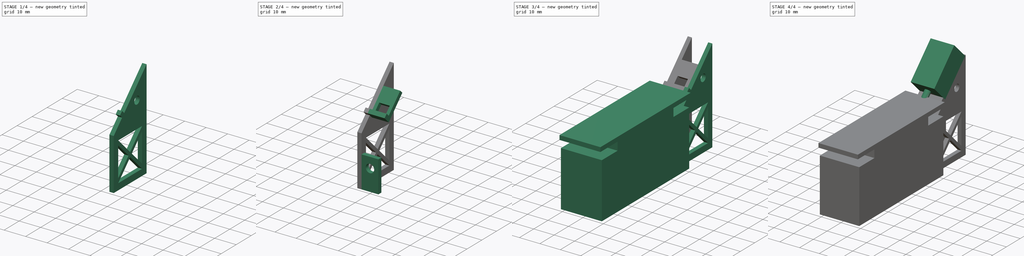
[diagram: build sequence overview — one tinted view per stage of 4, left to right]
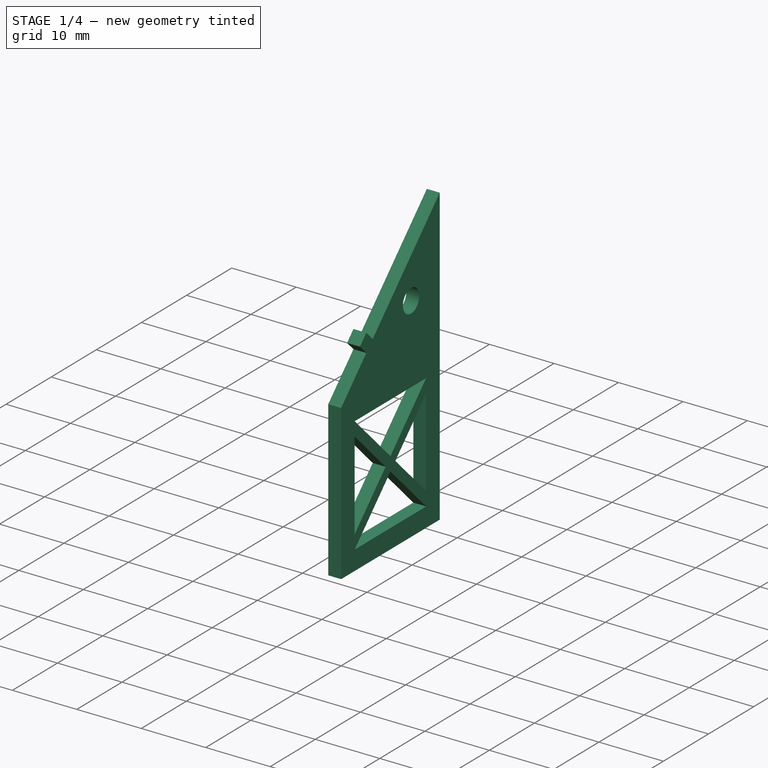
[diagram: stage 1 of 4 — iso view after this stage's code; geometry added in this stage tinted green]
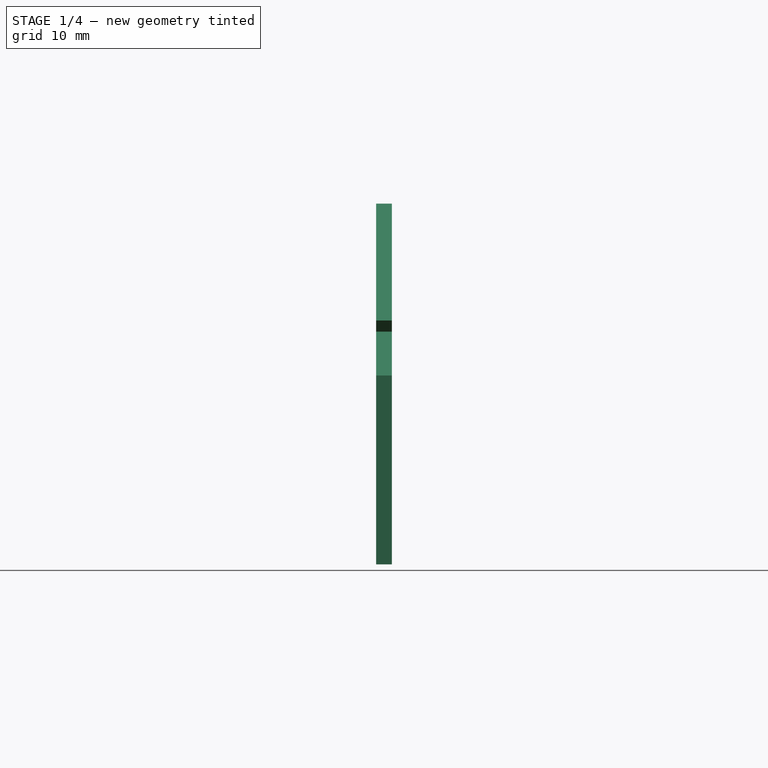
[diagram: stage 1 of 4 — front view after this stage's code; geometry added in this stage tinted green]
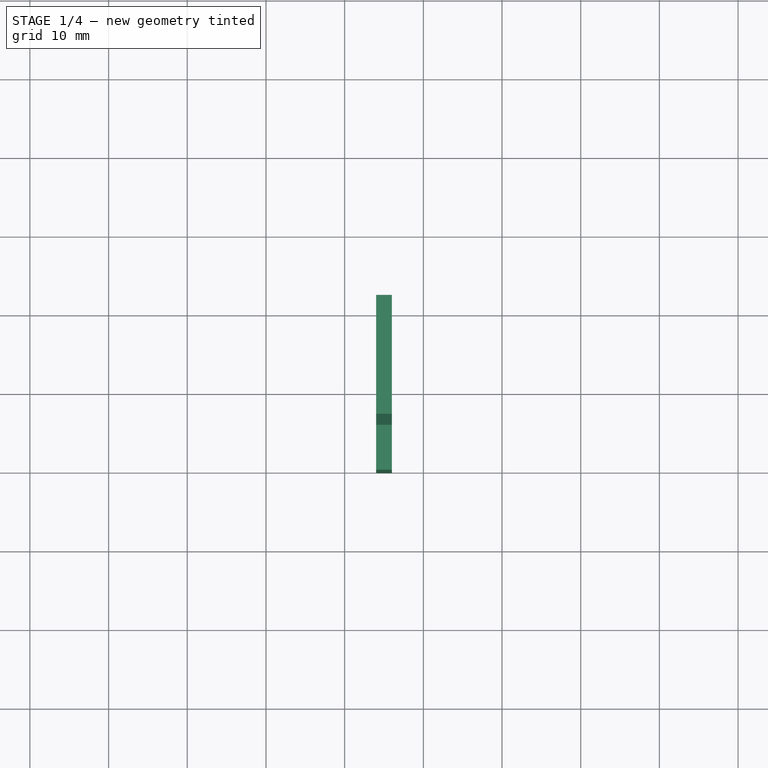
[diagram: stage 1 of 4 — top view after this stage's code; geometry added in this stage tinted green]
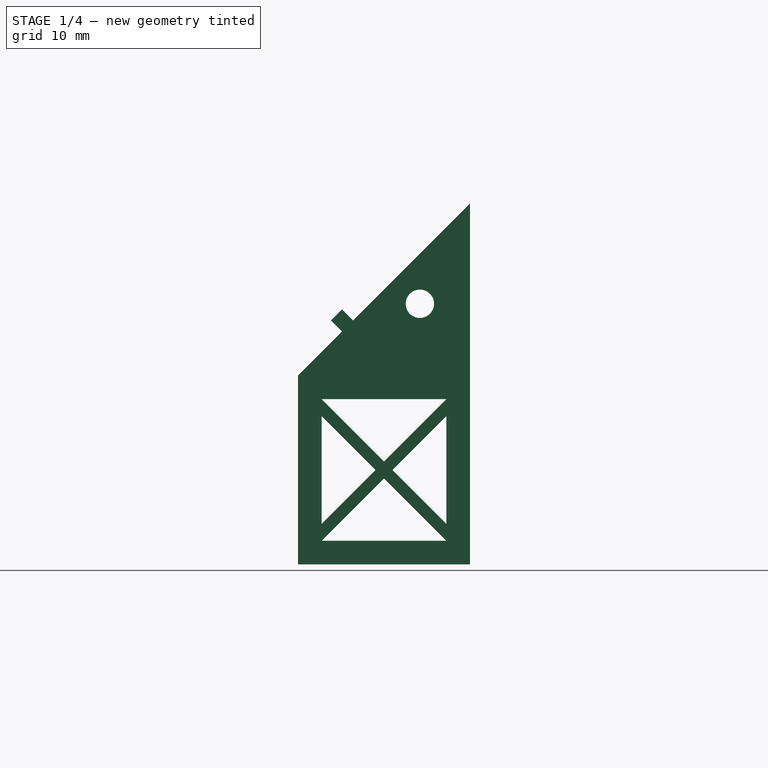
[diagram: stage 1 of 4 — right view after this stage's code; geometry added in this stage tinted green]
FCSTD DOCUMENT  (FreeCAD 0.16R)
Label: solenoid_holder
License: All rights reserved
LicenseURL: http://en.wikipedia.org/wiki/All_rights_reserved
objects: Sketcher::SketchObject×7, PartDesign::Pad×4, PartDesign::Pocket×3, App::DocumentObjectGroup×3, Part::Box×1, Part::FeaturePython×1, Part::MultiFuse×1
note: 24 computed .brp shape members not serialized (recipe doc carries the construction recipe); baked Part::Feature solids carry a one-line shape summary decoded from their .brp

FEATURE [Sketcher::SketchObject] Sketch002
  Placement = pos=(4,0,0) rot=(0.57735,0.57735,0.57735;2.0944rad)
  sketch-geometry (36):
    g0: LineSegment StartX=21.8492 StartY=0 StartZ=0 EndX=0 EndY=0 EndZ=0
    g1: LineSegment StartX=0 StartY=0 StartZ=0 EndX=0 EndY=24 EndZ=0
    g2: LineSegment StartX=0 StartY=24 StartZ=0 EndX=5.58579 EndY=29.5858 EndZ=0
    g3: LineSegment StartX=5.58579 StartY=29.5858 StartZ=0 EndX=4.17157 EndY=31 EndZ=0
    g4: LineSegment StartX=4.17157 StartY=31 StartZ=0 EndX=5.58579 EndY=32.4142 EndZ=0
    g5: LineSegment StartX=5.58579 StartY=32.4142 StartZ=0 EndX=7 EndY=31 EndZ=0
    g6: LineSegment StartX=7 StartY=31 StartZ=0 EndX=21.8492 EndY=45.8492 EndZ=0
    g7: LineSegment StartX=21.8492 StartY=45.8492 StartZ=0 EndX=21.8492 EndY=0 EndZ=0
    g8: LineSegment [constr] StartX=3 StartY=21 StartZ=0 EndX=18.8492 EndY=21 EndZ=0
    g9: LineSegment [constr] StartX=18.8492 StartY=21 StartZ=0 EndX=18.8492 EndY=3 EndZ=0
    g10: LineSegment [constr] StartX=18.8492 StartY=3 StartZ=0 EndX=3 EndY=3 EndZ=0
    g11: LineSegment [constr] StartX=3 StartY=3 StartZ=0 EndX=3 EndY=21 EndZ=0
    g12: LineSegment [constr] StartX=3 StartY=21 StartZ=0 EndX=0 EndY=21 EndZ=0
    g13: LineSegment [constr] StartX=18.8492 StartY=21 StartZ=0 EndX=21.8492 EndY=21 EndZ=0
    g14: LineSegment [constr] StartX=3 StartY=3 StartZ=0 EndX=3 EndY=0 EndZ=0
    g15: LineSegment StartX=3 StartY=18.8492 StartZ=0 EndX=9.84924 EndY=12 EndZ=0
    g16: LineSegment StartX=9.84924 StartY=12 StartZ=0 EndX=3 EndY=5.15076 EndZ=0
    g17: LineSegment StartX=3 StartY=5.15076 StartZ=0 EndX=3 EndY=18.8492 EndZ=0
    g18: LineSegment [constr] StartX=3 StartY=21 StartZ=0 EndX=18.8492 EndY=3 EndZ=0
    g19: LineSegment [constr] StartX=18.8492 StartY=21 StartZ=0 EndX=3 EndY=3 EndZ=0
    g20: Circle [constr] CenterX=10.9246 CenterY=12 CenterZ=0 NormalX=0 NormalY=0 NormalZ=1 Radius=1.07538
    g21: LineSegment [constr] StartX=9.84924 StartY=12 StartZ=0 EndX=3 EndY=12 EndZ=0
    g22: LineSegment [constr] StartX=18.8492 StartY=12 StartZ=0 EndX=12 EndY=12 EndZ=0
    g23: LineSegment StartX=18.8492 StartY=18.8492 StartZ=0 EndX=12 EndY=12 EndZ=0
    g24: LineSegment StartX=12 StartY=12 StartZ=0 EndX=18.8492 EndY=5.15076 EndZ=0
    g25: LineSegment StartX=18.8492 StartY=5.15076 StartZ=0 EndX=18.8492 EndY=18.8492 EndZ=0
    g26: LineSegment StartX=3 StartY=21 StartZ=0 EndX=18.8492 EndY=21 EndZ=0
    g27: LineSegment StartX=18.8492 StartY=21 StartZ=0 EndX=10.9246 EndY=13.0754 EndZ=0
    g28: LineSegment StartX=10.9246 StartY=13.0754 StartZ=0 EndX=3 EndY=21 EndZ=0
    g29: LineSegment [constr] StartX=10.9246 StartY=13.0754 StartZ=0 EndX=10.9246 EndY=21 EndZ=0
    g30: LineSegment [constr] StartX=10.9246 StartY=10.9246 StartZ=0 EndX=10.9246 EndY=3 EndZ=0
    g31: LineSegment StartX=10.9246 StartY=10.9246 StartZ=0 EndX=3 EndY=3 EndZ=0
    g32: LineSegment StartX=3 StartY=3 StartZ=0 EndX=18.8492 EndY=3 EndZ=0
    g33: LineSegment StartX=18.8492 StartY=3 StartZ=0 EndX=10.9246 EndY=10.9246 EndZ=0
    g34: Circle CenterX=15.4853 CenterY=33.1213 CenterZ=0 NormalX=0 NormalY=0 NormalZ=1 Radius=1.8
    g35: LineSegment [constr] StartX=15.4853 StartY=33.1213 StartZ=0 EndX=12.3033 EndY=36.3033 EndZ=0
  constraints (101):
    c: PointOnObject(g0,g-1)
    c: Coincident(g0,g-1)
    c: Coincident(g0,g1)
    c: PointOnObject(g1,g-2)
    c: Coincident(g1,g2)
    c: Coincident(g2,g3)
    c: Coincident(g3,g4)
    c: Coincident(g4,g5)
    c: Coincident(g5,g6)
    c: Coincident(g6,g7)
    c: Vertical(g7)
    c: Coincident(g7,g0)
    c: Angle(g1,g2) = 2.35619
    c: Perpendicular(g2,g3)
    c: Perpendicular(g3,g4)
    c: Perpendicular(g4,g5)
    c: Perpendicular(g5,g6)
    c: Equal(g5,g3)
    c: Distance(g5,g0) = 31
    c: Distance(g4) = 2
    c: Distance(g3) = 2
    c: Distance(g1) = 24
    c: Distance(g6) = 21
    c: Coincident(g8,g9)
    c: Coincident(g9,g10)
    c: Coincident(g10,g11)
    c: Coincident(g11,g8)
    c: Horizontal(g8)
    c: Vertical(g9)
    c: Vertical(g11)
    c: Coincident(g12,g8)
    c: PointOnObject(g12,g1)
    c: Horizontal(g12)
    c: Coincident(g13,g8)
    c: PointOnObject(g13,g7)
    c: Horizontal(g13)
    c: Equal(g13,g12)
    c: Coincident(g14,g10)
    c: PointOnObject(g14,g0)
    c: Vertical(g14)
    c: Equal(g14,g12)
    c: DistanceX(g13,g13) = 3
    c: Distance(g1,g12) = 3
    c: PointOnObject(g15,g11)
    c: Coincident(g15,g16)
    c: PointOnObject(g16,g11)
    c: Coincident(g16,g17)
    c: Coincident(g17,g15)
    c: Coincident(g18,g8)
    c: Coincident(g18,g9)
    c: Coincident(g19,g8)
    c: Coincident(g19,g10)
    c: PointOnObject(g20,g18)
    c: PointOnObject(g20,g19)
    c: PointOnObject(g15,g20)
    c: Coincident(g21,g15)
    c: PointOnObject(g21,g11)
    c: Symmetric(g15,g16,g21)
    c: Symmetric(g8,g10,g21)
    c: Angle(g15,g16) = 1.5708
    c: PointOnObject(g22,g9)
    c: PointOnObject(g22,g20)
    c: PointOnObject(g23,g9)
    c: Coincident(g23,g22)
    c: Coincident(g23,g24)
    c: PointOnObject(g24,g9)
    c: Coincident(g24,g25)
    c: Coincident(g25,g23)
    c: Angle(g24,g23) = 1.5708
    c: Symmetric(g8,g9,g22)
    c: Symmetric(g23,g24,g22)
    c: PointOnObject(g26,g8)
    c: PointOnObject(g26,g8)
    c: Coincident(g26,g27)
    c: PointOnObject(g27,g20)
    c: Coincident(g27,g28)
    c: Coincident(g28,g26)
    c: Angle(g27,g28) = 1.5708
    c: Coincident(g29,g27)
    c: PointOnObject(g29,g8)
    c: Symmetric(g26,g26,g29)
    c: Symmetric(g8,g8,g29)
    c: PointOnObject(g30,g20)
    c: PointOnObject(g30,g10)
    c: Vertical(g30)
    c: Coincident(g30,g31)
    c: PointOnObject(g31,g10)
    c: Coincident(g31,g32)
    c: PointOnObject(g32,g10)
    c: Coincident(g32,g33)
    c: Coincident(g33,g31)
    c: Angle(g31,g33) = 1.5708
    c: Symmetric(g31,g32,g30)
    c: Symmetric(g9,g10,g30)
    c: Coincident(g31,g10)
    c: Coincident(g35,g34)
    c: PointOnObject(g35,g6)
    c: Perpendicular(g6,g35)
    c: Radius(g34) = 1.8
    c: Distance(g35,g5) = 7.5
    c: Distance(g35) = 4.5
FEATURE [PartDesign::Pad] Pad002
  Length = 2
  Length2 = 100
  Placement = pos=(4,0,0) rot=(0.57735,0.57735,0.57735;2.0944rad)
  Sketch = -> Sketch002
  Type = 0
FEATURE [Sketcher::SketchObject] Sketch003
  ExternalGeometry = -> [Pad002]
  Placement = pos=(4,0,3) rot=(0,0,-1;1.5708rad)
  Support = -> Pad002 [Face10]
  sketch-geometry (2):
    g0: Circle CenterX=-15 CenterY=7 CenterZ=0 NormalX=0 NormalY=0 NormalZ=1 Radius=1.8
    g1: LineSegment [constr] StartX=-15 StartY=7 StartZ=0 EndX=-15 EndY=2 EndZ=0
  constraints (6):
    c: Coincident(g1,g0)
    c: PointOnObject(g1,g-3)
    c: Perpendicular(g-3,g1)
    c: Distance(g1) = 5
    c: Radius(g0) = 1.8
    c: Distance(g1,g-3) = 8
FEATURE [PartDesign::Pocket] Pocket
  Length = 5
  Placement = pos=(4,0,0) rot=(0.57735,0.57735,0.57735;2.0944rad)
  Sketch = -> Sketch003
  Type = 1
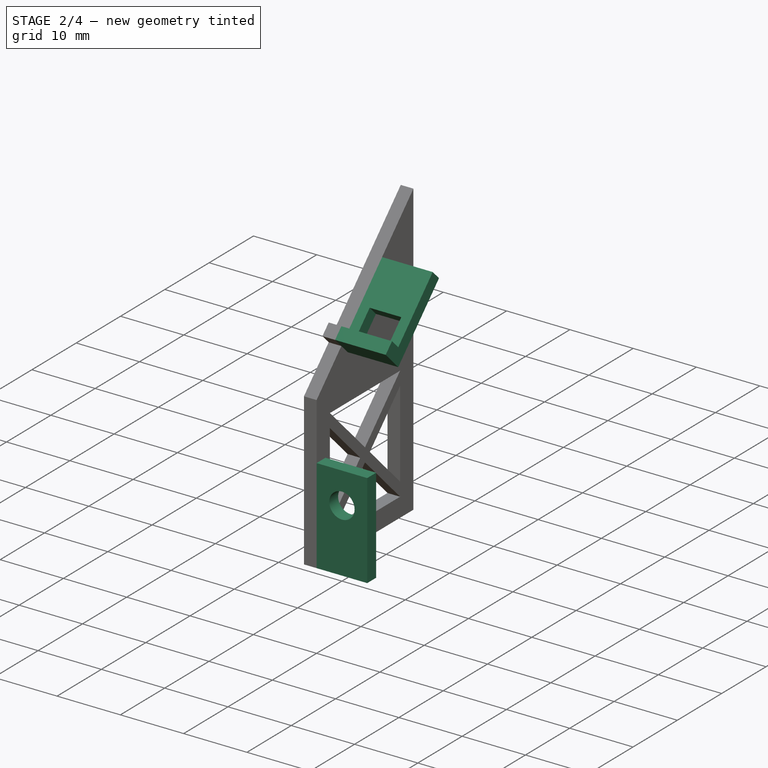
[diagram: stage 2 of 4 — iso view after this stage's code; geometry added in this stage tinted green]
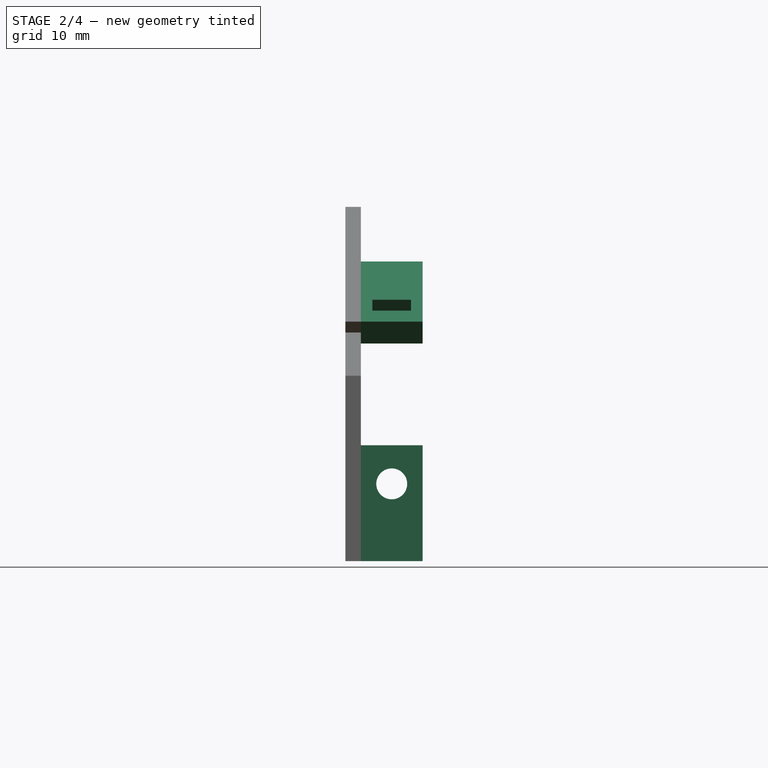
[diagram: stage 2 of 4 — front view after this stage's code; geometry added in this stage tinted green]
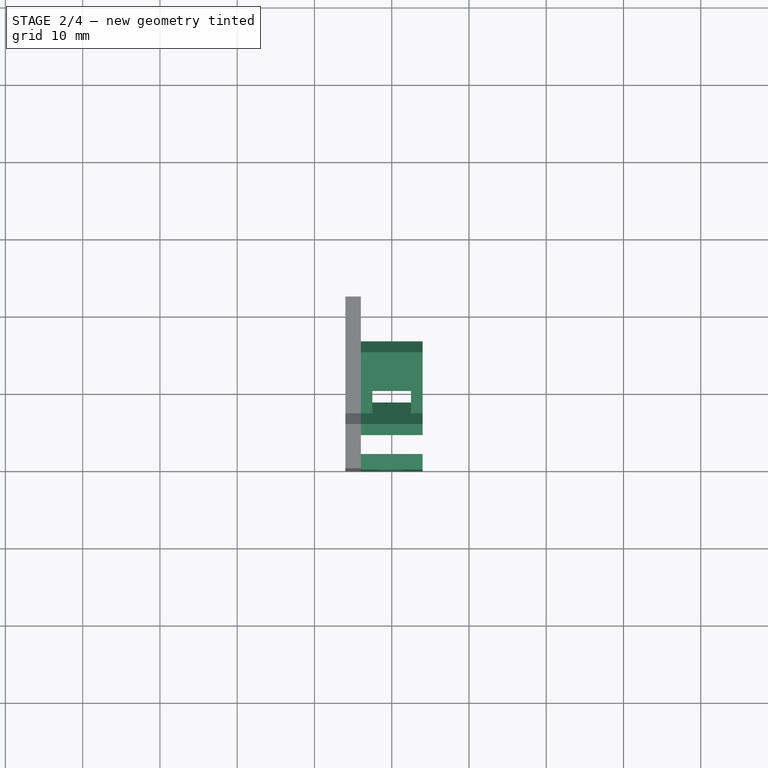
[diagram: stage 2 of 4 — top view after this stage's code; geometry added in this stage tinted green]
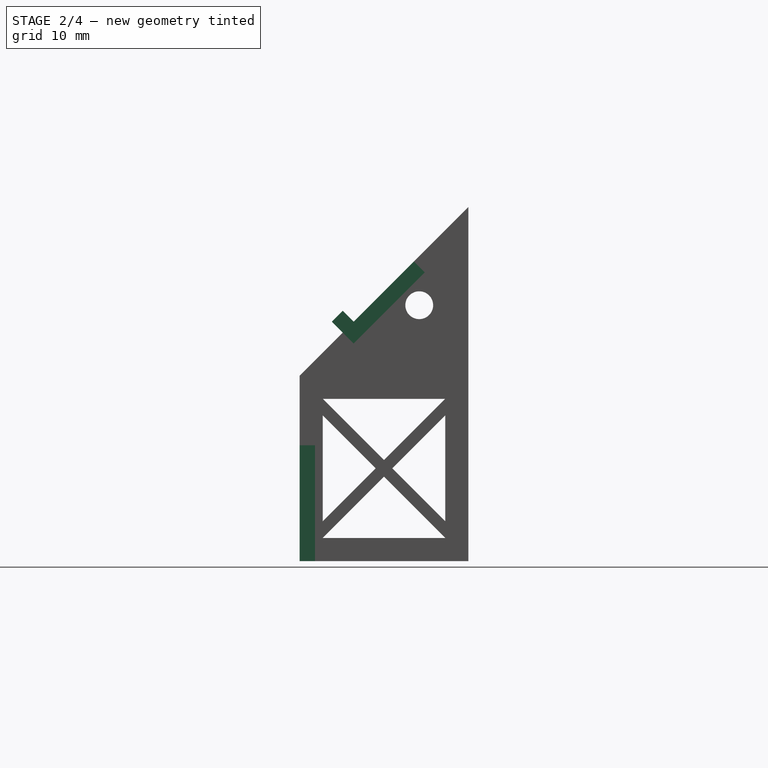
[diagram: stage 2 of 4 — right view after this stage's code; geometry added in this stage tinted green]
FEATURE [Sketcher::SketchObject] Sketch004
  ExternalGeometry = -> [Pocket]
  Placement = pos=(6,0,0) rot=(0.57735,0.57735,0.57735;2.0944rad)
  Support = -> Pocket [Face23]
  sketch-geometry (10):
    g0: LineSegment StartX=7 StartY=31 StartZ=0 EndX=5.58579 EndY=32.4142 EndZ=0
    g1: LineSegment StartX=5.58579 StartY=32.4142 StartZ=0 EndX=4.17157 EndY=31 EndZ=0
    g2: LineSegment StartX=4.17157 StartY=31 StartZ=0 EndX=7 EndY=28.1716 EndZ=0
    g3: LineSegment StartX=7 StartY=28.1716 StartZ=0 EndX=16.1924 EndY=37.364 EndZ=0
    g4: LineSegment StartX=16.1924 StartY=37.364 StartZ=0 EndX=14.7782 EndY=38.7782 EndZ=0
    g5: LineSegment StartX=0 StartY=0 StartZ=0 EndX=2 EndY=0 EndZ=0
    g6: LineSegment StartX=2 StartY=0 StartZ=0 EndX=2 EndY=15 EndZ=0
    g7: LineSegment StartX=2 StartY=15 StartZ=0 EndX=0 EndY=15 EndZ=0
    g8: LineSegment StartX=0 StartY=15 StartZ=0 EndX=0 EndY=0 EndZ=0
    g9: LineSegment StartX=7 StartY=31 StartZ=0 EndX=14.7782 EndY=38.7782 EndZ=0
  constraints (26):
    c: Coincident(g-4,g0)
    c: Coincident(g0,g-5)
    c: Coincident(g0,g1)
    c: Coincident(g1,g-6)
    c: Coincident(g1,g2)
    c: Coincident(g2,g3)
    c: Coincident(g3,g4)
    c: PointOnObject(g4,g-3)
    c: Perpendicular(g3,g2)
    c: PointOnObject(g-6,g2)
    c: Perpendicular(g3,g4)
    c: Distance(g4) = 2
    c: Distance(g3) = 13
    c: Coincident(g5,g6)
    c: Coincident(g6,g7)
    c: Coincident(g7,g8)
    c: Coincident(g8,g5)
    c: Horizontal(g5)
    c: Horizontal(g7)
    c: Vertical(g6)
    c: Vertical(g8)
    c: Coincident(g5,g-1)
    c: DistanceX(g7,g7) = 2
    c: DistanceY(g6,g6) = 15
    c: Coincident(g9,g0)
    c: Coincident(g9,g4)
FEATURE [PartDesign::Pad] Pad003
  Length = 8
  Length2 = 100
  Placement = pos=(4,0,0) rot=(0.57735,0.57735,0.57735;2.0944rad)
  Sketch = -> Sketch004
  Type = 0
FEATURE [Sketcher::SketchObject] Sketch005
  ExternalGeometry = -> [Pad003]
  Placement = pos=(4,-12,12) rot=(0.357407,0.357407,-0.862856;1.71777rad)
  Support = -> Pad003 [Face7]
  sketch-geometry (6):
    g0: LineSegment StartX=-26.8701 StartY=8.5 StartZ=0 EndX=-30.8701 EndY=8.5 EndZ=0
    g1: LineSegment StartX=-30.8701 StartY=8.5 StartZ=0 EndX=-30.8701 EndY=3.5 EndZ=0
    g2: LineSegment StartX=-30.8701 StartY=3.5 StartZ=0 EndX=-26.8701 EndY=3.5 EndZ=0
    g3: LineSegment StartX=-26.8701 StartY=3.5 StartZ=0 EndX=-26.8701 EndY=8.5 EndZ=0
    g4: LineSegment [constr] StartX=-26.8701 StartY=2 StartZ=0 EndX=-26.8701 EndY=3.5 EndZ=0
    g5: LineSegment [constr] StartX=-26.8701 StartY=10 StartZ=0 EndX=-26.8701 EndY=8.5 EndZ=0
  constraints (16):
    c: Coincident(g0,g1)
    c: Coincident(g1,g2)
    c: Coincident(g2,g3)
    c: Coincident(g3,g0)
    c: Horizontal(g0)
    c: Horizontal(g2)
    c: Vertical(g1)
    c: Vertical(g3)
    c: PointOnObject(g0,g-3)
    c: Distance(g1) = 5
    c: Distance(g0) = 4
    c: Coincident(g4,g-3)
    c: Coincident(g4,g2)
    c: Coincident(g5,g-3)
    c: Coincident(g5,g0)
    c: Equal(g4,g5)
FEATURE [PartDesign::Pocket] Pocket001
  Length = 5
  Placement = pos=(4,0,0) rot=(0.57735,0.57735,0.57735;2.0944rad)
  Sketch = -> Sketch005
  Type = 1
FEATURE [Sketcher::SketchObject] Sketch006
  ExternalGeometry = -> [Pocket001]
  Placement = pos=(4,2,0) rot=(0.57735,0.57735,0.57735;4.18879rad)
  Support = -> Pocket001 [Face26]
  sketch-geometry (2):
    g0: LineSegment [constr] StartX=15 StartY=6 StartZ=0 EndX=10 EndY=6 EndZ=0
    g1: Circle CenterX=10 CenterY=6 CenterZ=0 NormalX=0 NormalY=0 NormalZ=1 Radius=2
  constraints (6):
    c: PointOnObject(g0,g-5)
    c: Horizontal(g0)
    c: Symmetric(g-5,g-5,g0)
    c: Distance(g0) = 5
    c: Coincident(g1,g0)
    c: Radius(g1) = 2
FEATURE [PartDesign::Pocket] Pocket002
  Length = 5
  Placement = pos=(4,0,0) rot=(0.57735,0.57735,0.57735;2.0944rad)
  Sketch = -> Sketch006
  Type = 1
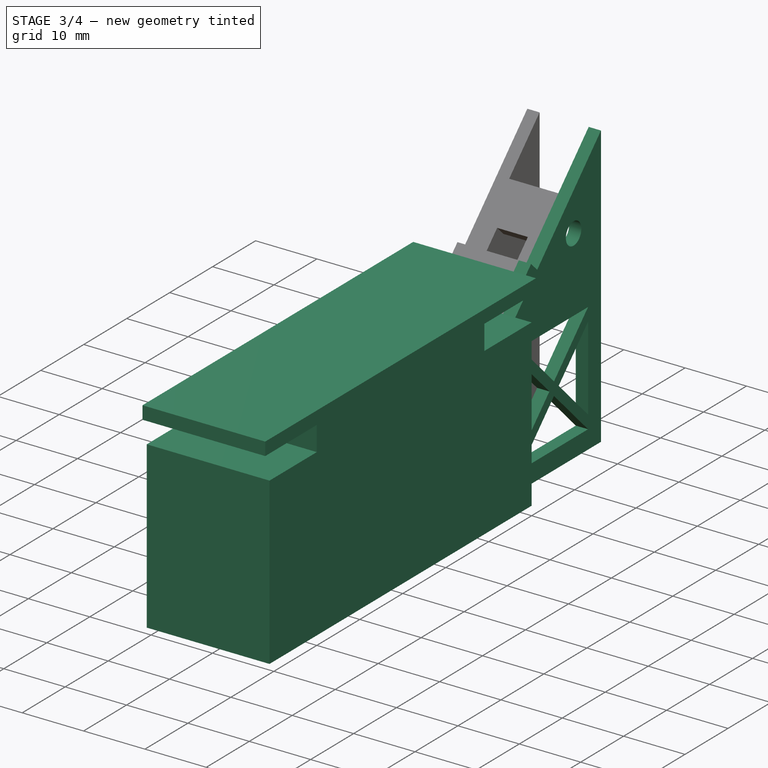
[diagram: stage 3 of 4 — iso view after this stage's code; geometry added in this stage tinted green]
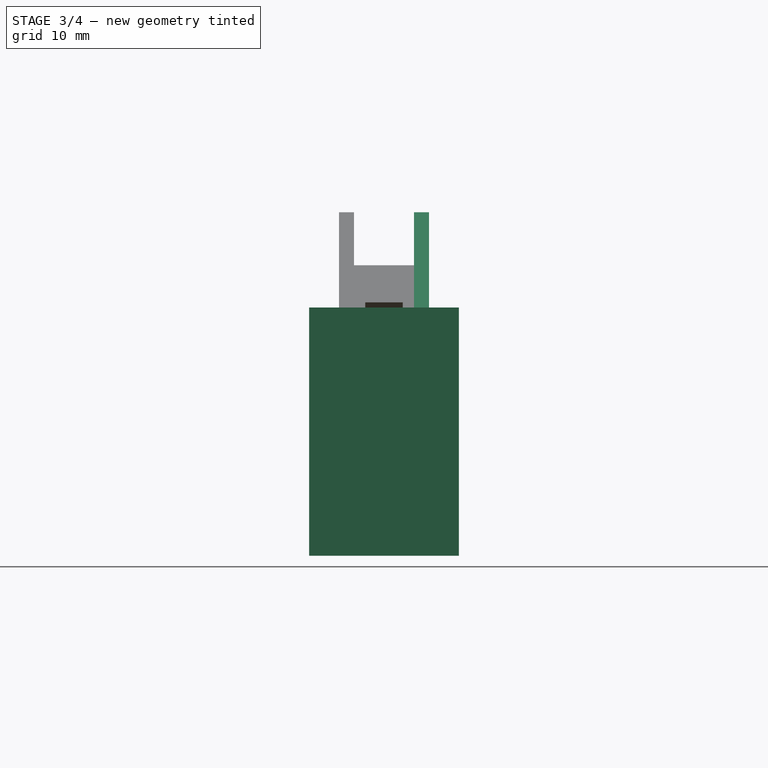
[diagram: stage 3 of 4 — front view after this stage's code; geometry added in this stage tinted green]
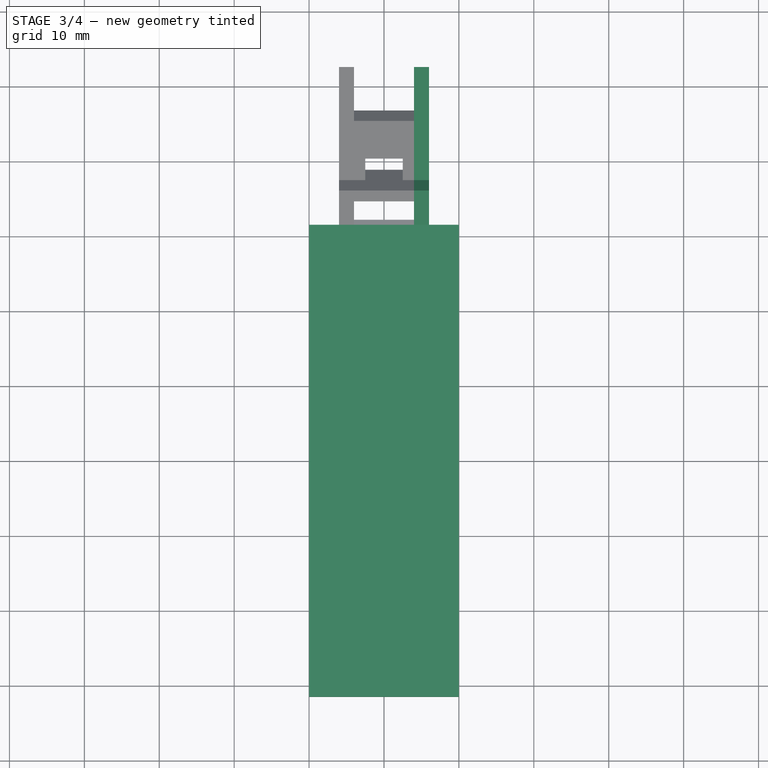
[diagram: stage 3 of 4 — top view after this stage's code; geometry added in this stage tinted green]
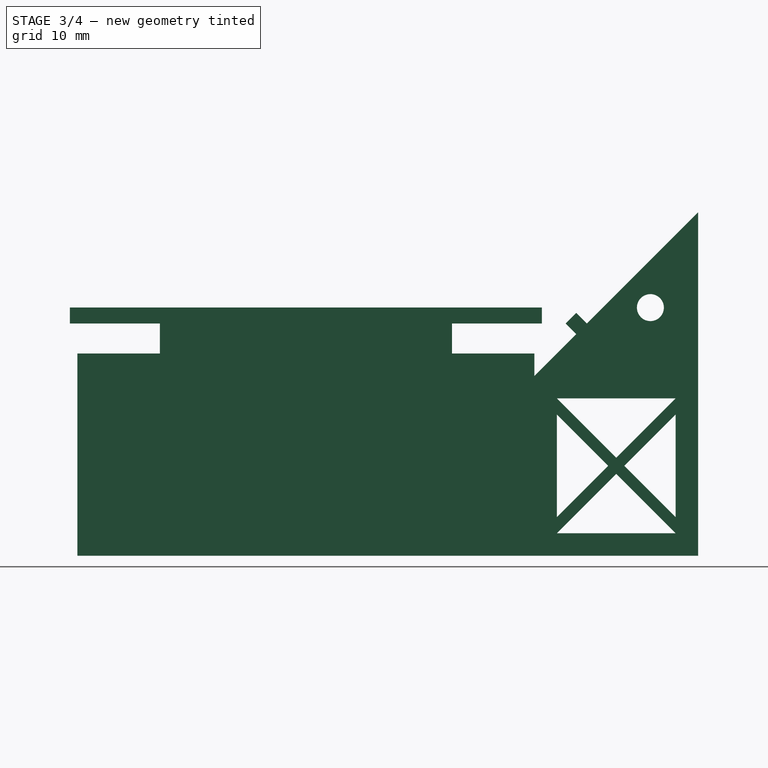
[diagram: stage 3 of 4 — right view after this stage's code; geometry added in this stage tinted green]
FEATURE [Sketcher::SketchObject] Sketch
  Placement = pos=(0,0,0) rot=(0.57735,0.57735,0.57735;2.0944rad)
  sketch-geometry (12):
    g0: LineSegment StartX=-61 StartY=0 StartZ=0 EndX=0 EndY=0 EndZ=0
    g1: LineSegment StartX=0 StartY=0 StartZ=0 EndX=0 EndY=27 EndZ=0
    g2: LineSegment StartX=0 StartY=27 StartZ=0 EndX=-11 EndY=27 EndZ=0
    g3: LineSegment StartX=-11 StartY=27 StartZ=0 EndX=-11 EndY=31 EndZ=0
    g4: LineSegment StartX=-11 StartY=31 StartZ=0 EndX=1 EndY=31 EndZ=0
    g5: LineSegment StartX=1 StartY=31 StartZ=0 EndX=1 EndY=33.13 EndZ=0
    g6: LineSegment StartX=1 StartY=33.13 StartZ=0 EndX=-62 EndY=33.13 EndZ=0
    g7: LineSegment StartX=-62 StartY=33.13 StartZ=0 EndX=-62 EndY=31 EndZ=0
    g8: LineSegment StartX=-62 StartY=31 StartZ=0 EndX=-50 EndY=31 EndZ=0
    g9: LineSegment StartX=-50 StartY=31 StartZ=0 EndX=-50 EndY=27 EndZ=0
    g10: LineSegment StartX=-50 StartY=27 StartZ=0 EndX=-61 EndY=27 EndZ=0
    g11: LineSegment StartX=-61 StartY=27 StartZ=0 EndX=-61 EndY=0 EndZ=0
  constraints (35):
    c: Coincident(g0,g-1)
    c: Horizontal(g0)
    c: Coincident(g0,g1)
    c: PointOnObject(g1,g-2)
    c: Coincident(g1,g2)
    c: Horizontal(g2)
    c: Coincident(g2,g3)
    c: Vertical(g3)
    c: Coincident(g3,g4)
    c: Horizontal(g4)
    c: Coincident(g4,g5)
    c: Vertical(g5)
    c: Coincident(g5,g6)
    c: Horizontal(g6)
    c: Coincident(g6,g7)
    c: Vertical(g7)
    c: Coincident(g7,g8)
    c: Horizontal(g8)
    c: Coincident(g8,g9)
    c: Vertical(g9)
    c: Coincident(g9,g10)
    c: Horizontal(g10)
    c: Coincident(g10,g11)
    c: Vertical(g11)
    c: Coincident(g0,g11)
    c: DistanceY(g1,g1) = 27
    c: DistanceY(g3,g3) = 4
    c: DistanceY(g5,g5) = 2.13
    c: DistanceX(g1,g4) = 1
    c: DistanceX(g2,g2) = 11
    c: DistanceX(g6,g6) = 63
    c: Equal(g8,g4)
    c: Equal(g9,g3)
    c: Equal(g7,g5)
    c: Equal(g10,g2)
FEATURE [PartDesign::Pad] Pad
  Length = 20
  Length2 = 100
  Placement = pos=(0,0,0) rot=(0.57735,0.57735,0.57735;2.0944rad)
  Sketch = -> Sketch
  Type = 0
FEATURE [App::DocumentObjectGroup] Group  label="Solenoid"
  Group = -> [Pad001,Box]
FEATURE [App::DocumentObjectGroup] Group001  label="glockenspiel"
  Group = -> [Pad]
FEATURE [Part::FeaturePython] Clone  label="Clone of Pocket"  # Draft clone (typed FeaturePython)
  Objects = -> [Pocket]
  Placement = pos=(14,0,0) rot=(0.57735,0.57735,0.57735;2.0944rad)
  Scale = (1,1,1)
FEATURE [Part::MultiFuse] Fusion
  Shapes = -> [Pocket002,Clone]
FEATURE [App::DocumentObjectGroup] Group002  label="holder"
  Group = -> [Pad002,Pocket,Pad003,Pocket001,Fusion]
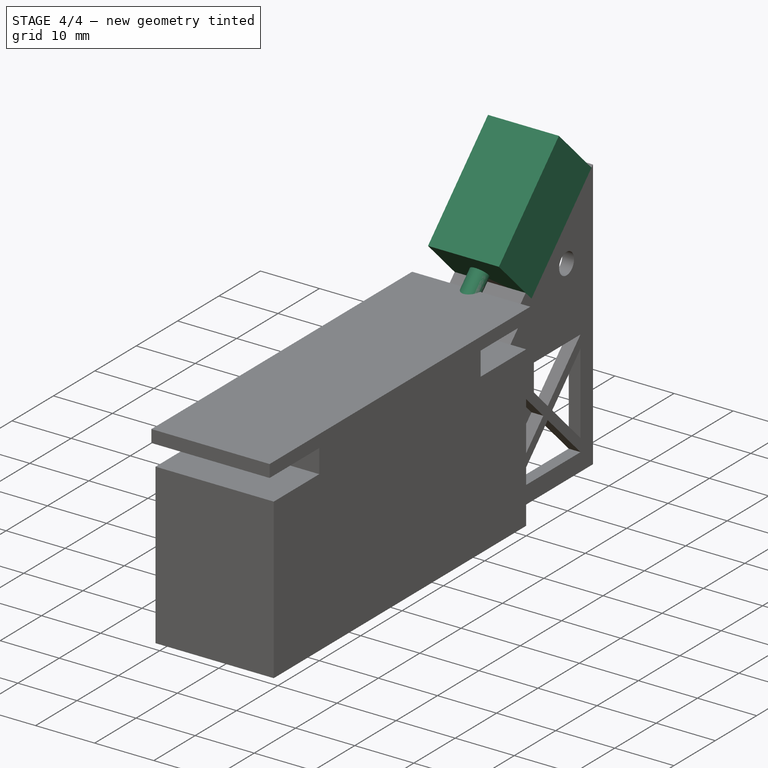
[diagram: stage 4 of 4 — iso view after this stage's code; geometry added in this stage tinted green]
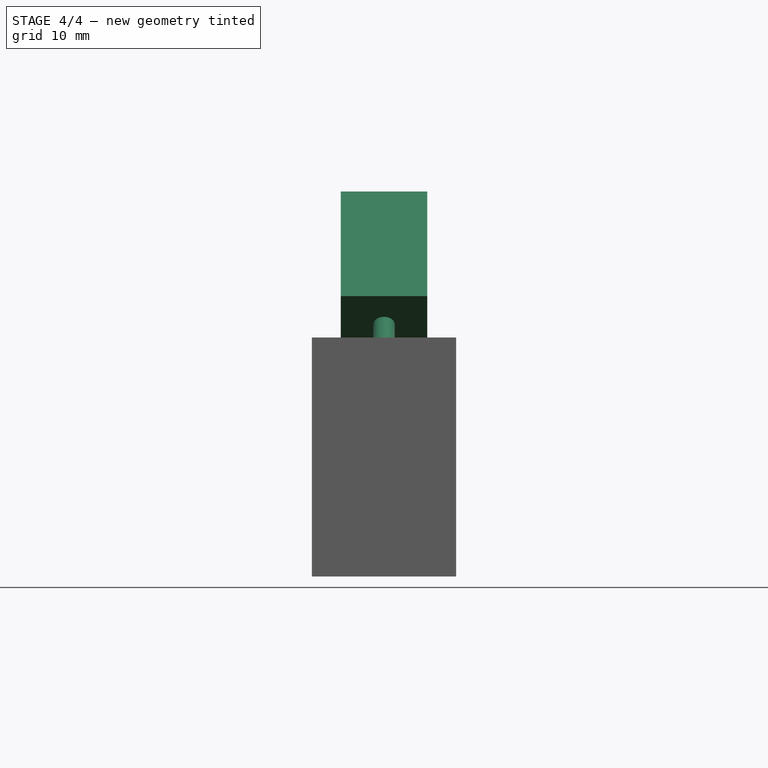
[diagram: stage 4 of 4 — front view after this stage's code; geometry added in this stage tinted green]
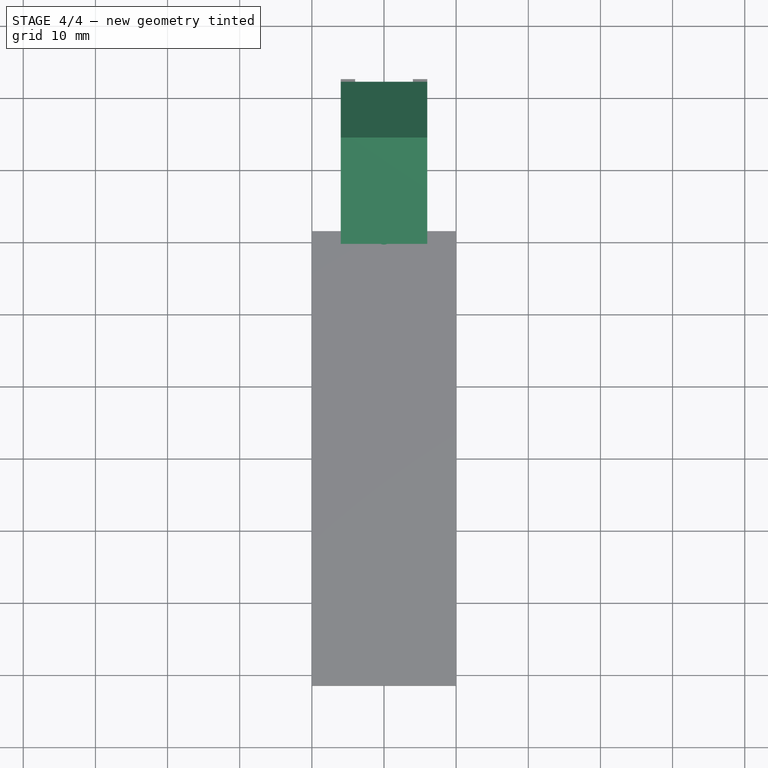
[diagram: stage 4 of 4 — top view after this stage's code; geometry added in this stage tinted green]
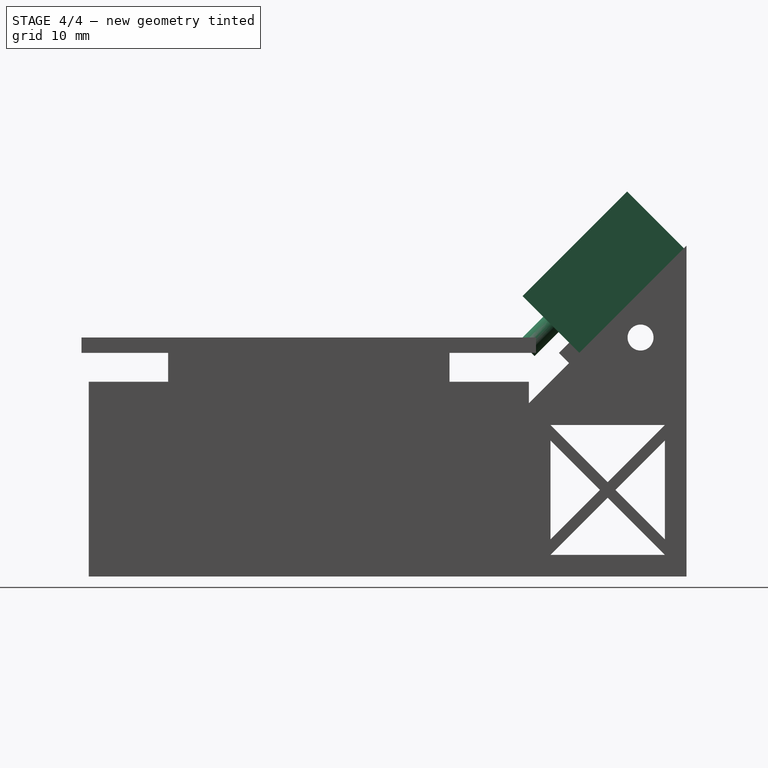
[diagram: stage 4 of 4 — right view after this stage's code; geometry added in this stage tinted green]
FEATURE [Part::Box] Box  label="Cube"
  Height = 11.13
  Length = 20.5
  Placement = pos=(16,7,31) rot=(0.357407,-0.357407,0.862856;1.71777rad)
  Width = 12
FEATURE [Sketcher::SketchObject] Sketch001
  ExternalGeometry = -> [Box]
  Placement = pos=(16,7,31) rot=(1,0,0;2.3562rad)
  Support = -> Box [Face1]
  sketch-geometry (3):
    g0: LineSegment [constr] StartX=-12 StartY=11.13 StartZ=0 EndX=0 EndY=0 EndZ=0
    g1: LineSegment [constr] StartX=0 StartY=11.13 StartZ=0 EndX=-12 EndY=0 EndZ=0
    g2: Circle CenterX=-6 CenterY=5.565 CenterZ=0 NormalX=0 NormalY=0 NormalZ=1 Radius=1.5
  constraints (7):
    c: Coincident(g0,g-3)
    c: Coincident(g0,g-1)
    c: Coincident(g1,g-3)
    c: Coincident(g1,g-4)
    c: PointOnObject(g2,g0)
    c: PointOnObject(g2,g1)
    c: Radius(g2) = 1.5
FEATURE [PartDesign::Pad] Pad001
  Length = 4.7
  Length2 = 100
  Placement = pos=(16,7,31) rot=(0.357407,-0.357407,0.862856;1.71777rad)
  Sketch = -> Sketch001
  Type = 0
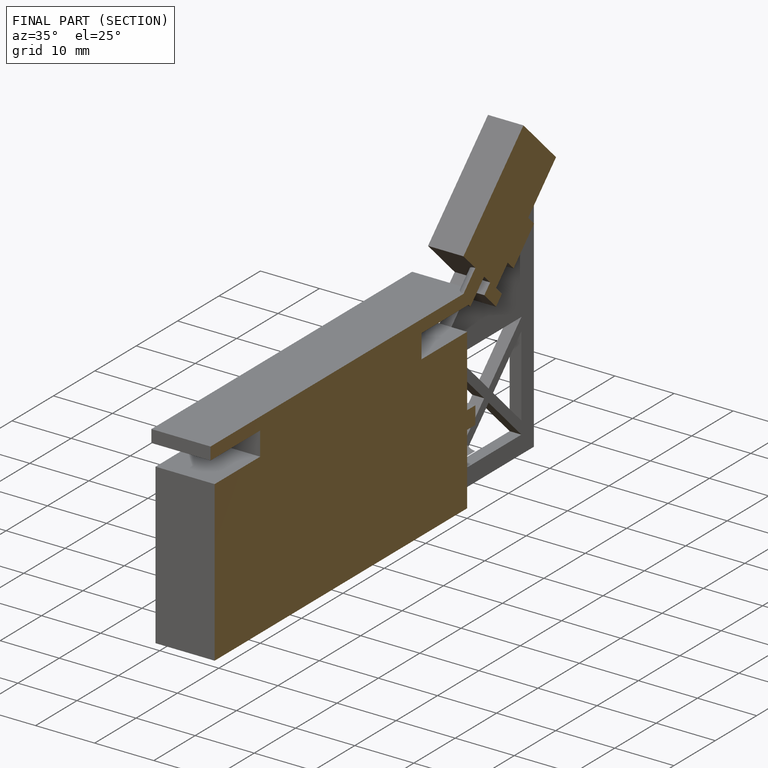
[diagram: finished part — half-section view (interior)]
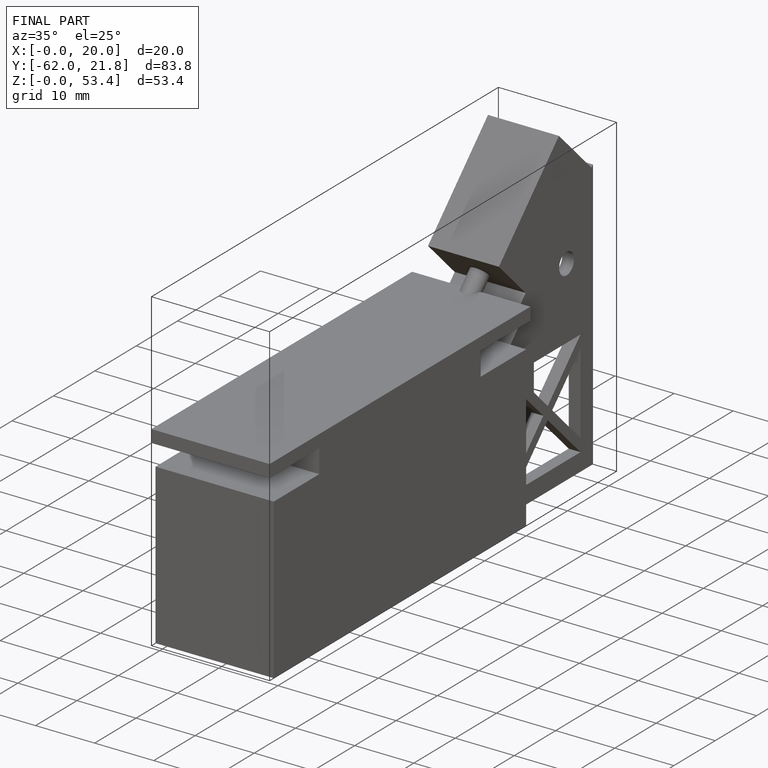
[diagram: finished part — iso view with bounding-box wireframe]
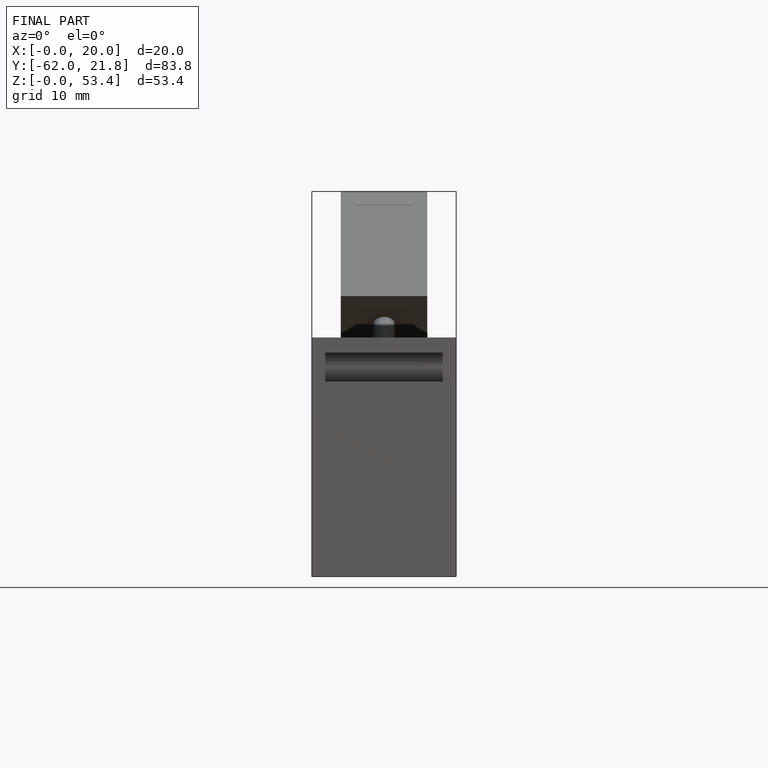
[diagram: finished part — front view with bounding-box wireframe]
